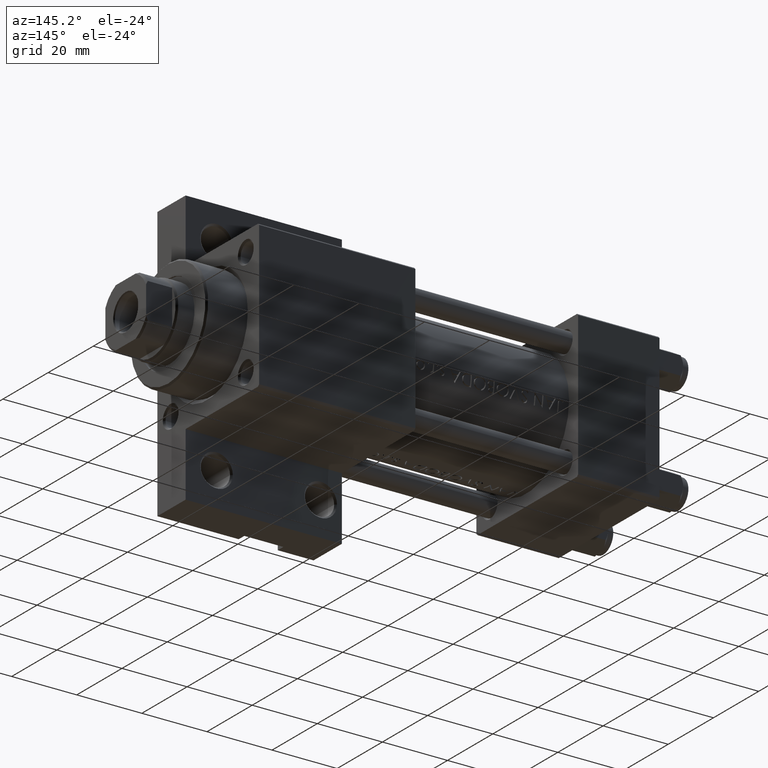
[diagram: clean part render]
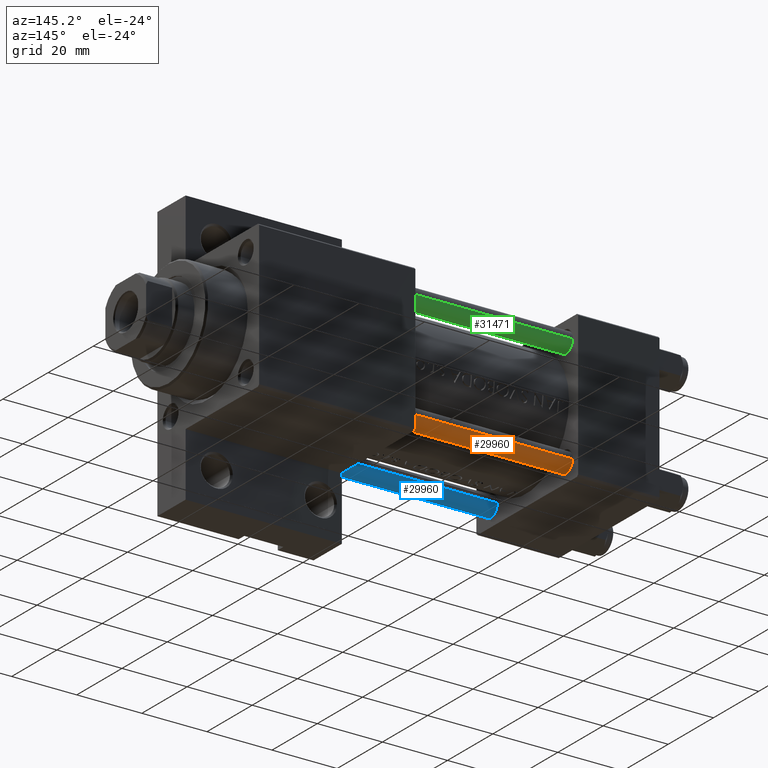
[diagram: same view with three faces highlighted in distinct colors, each labeled with its STEP entity id]
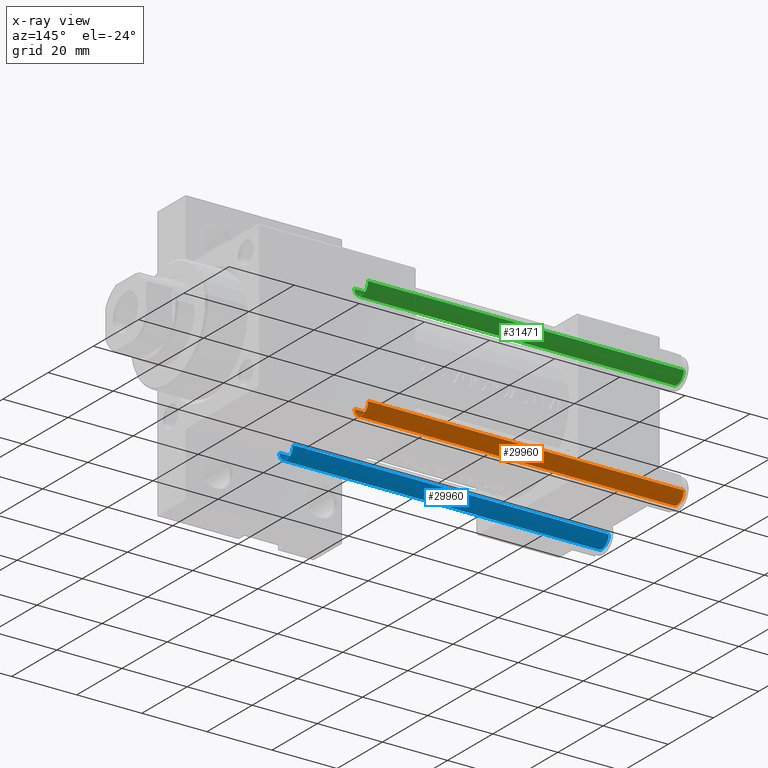
[diagram: x-ray of the same camera — body ghosted, the three highlighted faces saturated]
A machine part, auxiliary view with three faces highlighted in distinct colors.
The next image is the same camera in x-ray (body ghosted, the three faces saturated) — at least one of them is partly hidden behind the body in this view.
Their STEP definitions:

[orange] entity #29960 — the highlighted cylindrical surface (edge-blend (fillet) strip) has radius 3 mm, axis along (-1, -0, 0).
#332 = FACE_OUTER_BOUND ( 'NONE', #4332, .T. ) ;
#2021 = CARTESIAN_POINT ( 'NONE',  ( 0.000000000000000000, 0.000000000000000000, 0.5000000000000281997 ) ) ;
#2649 = CARTESIAN_POINT ( 'NONE',  ( -3.000000000000000444, 0.000000000000000000, 0.5000000000000281997 ) ) ;
#2966 = AXIS2_PLACEMENT_3D ( 'NONE', #33829, #44460, #29721 ) ;
#3233 = DIRECTION ( 'NONE',  ( 0.000000000000000000, 0.000000000000000000, -1.000000000000000000 ) ) ;
#3348 = CARTESIAN_POINT ( 'NONE',  ( -3.000000000000000444, 0.000000000000000000, 98.00000000000000000 ) ) ;
#3820 = CIRCLE ( 'NONE', #7653, 3.000000000000000444 ) ;
#4332 = EDGE_LOOP ( 'NONE', ( #13790, #13645, #45470, #42976 ) ) ;
#5930 = CARTESIAN_POINT ( 'NONE',  ( 3.000000000000000444, 3.673940397442060361E-16, 98.00000000000000000 ) ) ;
#5991 = CARTESIAN_POINT ( 'NONE',  ( 3.000000000000000444, 3.673940397442060361E-16, 97.50000000000001421 ) ) ;
#7653 = AXIS2_PLACEMENT_3D ( 'NONE', #2021, #15771, #9244 ) ;
#8809 = CARTESIAN_POINT ( 'NONE',  ( 3.000000000000000444, 3.673940397442060361E-16, 0.5000000000000281997 ) ) ;
#9244 = DIRECTION ( 'NONE',  ( 1.000000000000000000, 0.000000000000000000, 0.000000000000000000 ) ) ;
#9432 = EDGE_CURVE ( 'NONE', #23874, #19540, #3820, .T. ) ;
#13577 = VERTEX_POINT ( 'NONE', #18100 ) ;
#13645 = ORIENTED_EDGE ( 'NONE', *, *, #43698, .T. ) ;
#13790 = ORIENTED_EDGE ( 'NONE', *, *, #44628, .F. ) ;
#14953 = VERTEX_POINT ( 'NONE', #5991 ) ;
#15022 = CYLINDRICAL_SURFACE ( 'NONE', #2966, 3.000000000000000444 ) ;
#15771 = DIRECTION ( 'NONE',  ( -0.000000000000000000, -0.000000000000000000, 1.000000000000000000 ) ) ;
#18100 = CARTESIAN_POINT ( 'NONE',  ( -3.000000000000000444, 0.000000000000000000, 97.50000000000001421 ) ) ;
#19540 = VERTEX_POINT ( 'NONE', #8809 ) ;
#23874 = VERTEX_POINT ( 'NONE', #2649 ) ;
#24475 = LINE ( 'NONE', #5930, #27161 ) ;
#25631 = CIRCLE ( 'NONE', #38738, 3.000000000000000444 ) ;
#27161 = VECTOR ( 'NONE', #43543, 1000.000000000000000 ) ;
#28750 = VECTOR ( 'NONE', #32741, 1000.000000000000000 ) ;
#29721 = DIRECTION ( 'NONE',  ( -1.000000000000000000, 0.000000000000000000, 0.000000000000000000 ) ) ;
#29960 = ADVANCED_FACE ( 'NONE', ( #332 ), #15022, .T. ) ;
#32741 = DIRECTION ( 'NONE',  ( -0.000000000000000000, -0.000000000000000000, -1.000000000000000000 ) ) ;
#33829 = CARTESIAN_POINT ( 'NONE',  ( 0.000000000000000000, 0.000000000000000000, 98.00000000000000000 ) ) ;
#38738 = AXIS2_PLACEMENT_3D ( 'NONE', #44231, #3233, #41077 ) ;
#41077 = DIRECTION ( 'NONE',  ( 1.000000000000000000, 0.000000000000000000, 0.000000000000000000 ) ) ;
#42976 = ORIENTED_EDGE ( 'NONE', *, *, #9432, .T. ) ;
#43543 = DIRECTION ( 'NONE',  ( -0.000000000000000000, -0.000000000000000000, -1.000000000000000000 ) ) ;
#43698 = EDGE_CURVE ( 'NONE', #14953, #13577, #25631, .T. ) ;
#44101 = LINE ( 'NONE', #3348, #28750 ) ;
#44231 = CARTESIAN_POINT ( 'NONE',  ( 0.000000000000000000, 0.000000000000000000, 97.50000000000001421 ) ) ;
#44460 = DIRECTION ( 'NONE',  ( -0.000000000000000000, -0.000000000000000000, -1.000000000000000000 ) ) ;
#44628 = EDGE_CURVE ( 'NONE', #14953, #19540, #24475, .T. ) ;
#45470 = ORIENTED_EDGE ( 'NONE', *, *, #46490, .T. ) ;
#46490 = EDGE_CURVE ( 'NONE', #13577, #23874, #44101, .T. ) ;

[blue] entity #29960 — the highlighted cylindrical surface (edge-blend (fillet) strip) has radius 3 mm, axis along (1, 0, 0).
#332 = FACE_OUTER_BOUND ( 'NONE', #4332, .T. ) ;
#2021 = CARTESIAN_POINT ( 'NONE',  ( 0.000000000000000000, 0.000000000000000000, 0.5000000000000281997 ) ) ;
#2649 = CARTESIAN_POINT ( 'NONE',  ( -3.000000000000000444, 0.000000000000000000, 0.5000000000000281997 ) ) ;
#2966 = AXIS2_PLACEMENT_3D ( 'NONE', #33829, #44460, #29721 ) ;
#3233 = DIRECTION ( 'NONE',  ( 0.000000000000000000, 0.000000000000000000, -1.000000000000000000 ) ) ;
#3348 = CARTESIAN_POINT ( 'NONE',  ( -3.000000000000000444, 0.000000000000000000, 98.00000000000000000 ) ) ;
#3820 = CIRCLE ( 'NONE', #7653, 3.000000000000000444 ) ;
#4332 = EDGE_LOOP ( 'NONE', ( #13790, #13645, #45470, #42976 ) ) ;
#5930 = CARTESIAN_POINT ( 'NONE',  ( 3.000000000000000444, 3.673940397442060361E-16, 98.00000000000000000 ) ) ;
#5991 = CARTESIAN_POINT ( 'NONE',  ( 3.000000000000000444, 3.673940397442060361E-16, 97.50000000000001421 ) ) ;
#7653 = AXIS2_PLACEMENT_3D ( 'NONE', #2021, #15771, #9244 ) ;
#8809 = CARTESIAN_POINT ( 'NONE',  ( 3.000000000000000444, 3.673940397442060361E-16, 0.5000000000000281997 ) ) ;
#9244 = DIRECTION ( 'NONE',  ( 1.000000000000000000, 0.000000000000000000, 0.000000000000000000 ) ) ;
#9432 = EDGE_CURVE ( 'NONE', #23874, #19540, #3820, .T. ) ;
#13577 = VERTEX_POINT ( 'NONE', #18100 ) ;
#13645 = ORIENTED_EDGE ( 'NONE', *, *, #43698, .T. ) ;
#13790 = ORIENTED_EDGE ( 'NONE', *, *, #44628, .F. ) ;
#14953 = VERTEX_POINT ( 'NONE', #5991 ) ;
#15022 = CYLINDRICAL_SURFACE ( 'NONE', #2966, 3.000000000000000444 ) ;
#15771 = DIRECTION ( 'NONE',  ( -0.000000000000000000, -0.000000000000000000, 1.000000000000000000 ) ) ;
#18100 = CARTESIAN_POINT ( 'NONE',  ( -3.000000000000000444, 0.000000000000000000, 97.50000000000001421 ) ) ;
#19540 = VERTEX_POINT ( 'NONE', #8809 ) ;
#23874 = VERTEX_POINT ( 'NONE', #2649 ) ;
#24475 = LINE ( 'NONE', #5930, #27161 ) ;
#25631 = CIRCLE ( 'NONE', #38738, 3.000000000000000444 ) ;
#27161 = VECTOR ( 'NONE', #43543, 1000.000000000000000 ) ;
#28750 = VECTOR ( 'NONE', #32741, 1000.000000000000000 ) ;
#29721 = DIRECTION ( 'NONE',  ( -1.000000000000000000, 0.000000000000000000, 0.000000000000000000 ) ) ;
#29960 = ADVANCED_FACE ( 'NONE', ( #332 ), #15022, .T. ) ;
#32741 = DIRECTION ( 'NONE',  ( -0.000000000000000000, -0.000000000000000000, -1.000000000000000000 ) ) ;
#33829 = CARTESIAN_POINT ( 'NONE',  ( 0.000000000000000000, 0.000000000000000000, 98.00000000000000000 ) ) ;
#38738 = AXIS2_PLACEMENT_3D ( 'NONE', #44231, #3233, #41077 ) ;
#41077 = DIRECTION ( 'NONE',  ( 1.000000000000000000, 0.000000000000000000, 0.000000000000000000 ) ) ;
#42976 = ORIENTED_EDGE ( 'NONE', *, *, #9432, .T. ) ;
#43543 = DIRECTION ( 'NONE',  ( -0.000000000000000000, -0.000000000000000000, -1.000000000000000000 ) ) ;
#43698 = EDGE_CURVE ( 'NONE', #14953, #13577, #25631, .T. ) ;
#44101 = LINE ( 'NONE', #3348, #28750 ) ;
#44231 = CARTESIAN_POINT ( 'NONE',  ( 0.000000000000000000, 0.000000000000000000, 97.50000000000001421 ) ) ;
#44460 = DIRECTION ( 'NONE',  ( -0.000000000000000000, -0.000000000000000000, -1.000000000000000000 ) ) ;
#44628 = EDGE_CURVE ( 'NONE', #14953, #19540, #24475, .T. ) ;
#45470 = ORIENTED_EDGE ( 'NONE', *, *, #46490, .T. ) ;
#46490 = EDGE_CURVE ( 'NONE', #13577, #23874, #44101, .T. ) ;

[green] entity #31471 — the highlighted cylindrical surface (edge-blend (fillet) strip) has radius 3 mm, axis along (1, -0, 0).
#2288 = AXIS2_PLACEMENT_3D ( 'NONE', #33256, #31647, #35517 ) ;
#2649 = CARTESIAN_POINT ( 'NONE',  ( -3.000000000000000444, 0.000000000000000000, 0.5000000000000281997 ) ) ;
#3348 = CARTESIAN_POINT ( 'NONE',  ( -3.000000000000000444, 0.000000000000000000, 98.00000000000000000 ) ) ;
#3568 = CIRCLE ( 'NONE', #19747, 3.000000000000000444 ) ;
#5930 = CARTESIAN_POINT ( 'NONE',  ( 3.000000000000000444, 3.673940397442060361E-16, 98.00000000000000000 ) ) ;
#5991 = CARTESIAN_POINT ( 'NONE',  ( 3.000000000000000444, 3.673940397442060361E-16, 97.50000000000001421 ) ) ;
#8453 = DIRECTION ( 'NONE',  ( 0.000000000000000000, 0.000000000000000000, -1.000000000000000000 ) ) ;
#8809 = CARTESIAN_POINT ( 'NONE',  ( 3.000000000000000444, 3.673940397442060361E-16, 0.5000000000000281997 ) ) ;
#9239 = DIRECTION ( 'NONE',  ( -1.000000000000000000, 0.000000000000000000, 0.000000000000000000 ) ) ;
#12522 = ORIENTED_EDGE ( 'NONE', *, *, #44628, .T. ) ;
#13025 = CARTESIAN_POINT ( 'NONE',  ( 0.000000000000000000, 0.000000000000000000, 97.50000000000001421 ) ) ;
#13577 = VERTEX_POINT ( 'NONE', #18100 ) ;
#14953 = VERTEX_POINT ( 'NONE', #5991 ) ;
#15295 = ORIENTED_EDGE ( 'NONE', *, *, #21025, .T. ) ;
#18100 = CARTESIAN_POINT ( 'NONE',  ( -3.000000000000000444, 0.000000000000000000, 97.50000000000001421 ) ) ;
#19390 = CARTESIAN_POINT ( 'NONE',  ( 0.000000000000000000, 0.000000000000000000, 98.00000000000000000 ) ) ;
#19540 = VERTEX_POINT ( 'NONE', #8809 ) ;
#19628 = CYLINDRICAL_SURFACE ( 'NONE', #22240, 3.000000000000000444 ) ;
#19747 = AXIS2_PLACEMENT_3D ( 'NONE', #13025, #8453, #34983 ) ;
#21025 = EDGE_CURVE ( 'NONE', #13577, #14953, #3568, .T. ) ;
#22240 = AXIS2_PLACEMENT_3D ( 'NONE', #19390, #23238, #9239 ) ;
#23238 = DIRECTION ( 'NONE',  ( -0.000000000000000000, -0.000000000000000000, -1.000000000000000000 ) ) ;
#23874 = VERTEX_POINT ( 'NONE', #2649 ) ;
#24475 = LINE ( 'NONE', #5930, #27161 ) ;
#27161 = VECTOR ( 'NONE', #43543, 1000.000000000000000 ) ;
#28750 = VECTOR ( 'NONE', #32741, 1000.000000000000000 ) ;
#31471 = ADVANCED_FACE ( 'NONE', ( #37972 ), #19628, .T. ) ;
#31647 = DIRECTION ( 'NONE',  ( -0.000000000000000000, -0.000000000000000000, 1.000000000000000000 ) ) ;
#31698 = EDGE_CURVE ( 'NONE', #19540, #23874, #41539, .T. ) ;
#32741 = DIRECTION ( 'NONE',  ( -0.000000000000000000, -0.000000000000000000, -1.000000000000000000 ) ) ;
#33256 = CARTESIAN_POINT ( 'NONE',  ( 0.000000000000000000, 0.000000000000000000, 0.5000000000000281997 ) ) ;
#34983 = DIRECTION ( 'NONE',  ( 1.000000000000000000, 0.000000000000000000, 0.000000000000000000 ) ) ;
#35517 = DIRECTION ( 'NONE',  ( 1.000000000000000000, 0.000000000000000000, 0.000000000000000000 ) ) ;
#37693 = ORIENTED_EDGE ( 'NONE', *, *, #31698, .T. ) ;
#37972 = FACE_OUTER_BOUND ( 'NONE', #41322, .T. ) ;
#39367 = ORIENTED_EDGE ( 'NONE', *, *, #46490, .F. ) ;
#41322 = EDGE_LOOP ( 'NONE', ( #15295, #12522, #37693, #39367 ) ) ;
#41539 = CIRCLE ( 'NONE', #2288, 3.000000000000000444 ) ;
#43543 = DIRECTION ( 'NONE',  ( -0.000000000000000000, -0.000000000000000000, -1.000000000000000000 ) ) ;
#44101 = LINE ( 'NONE', #3348, #28750 ) ;
#44628 = EDGE_CURVE ( 'NONE', #14953, #19540, #24475, .T. ) ;
#46490 = EDGE_CURVE ( 'NONE', #13577, #23874, #44101, .T. ) ;